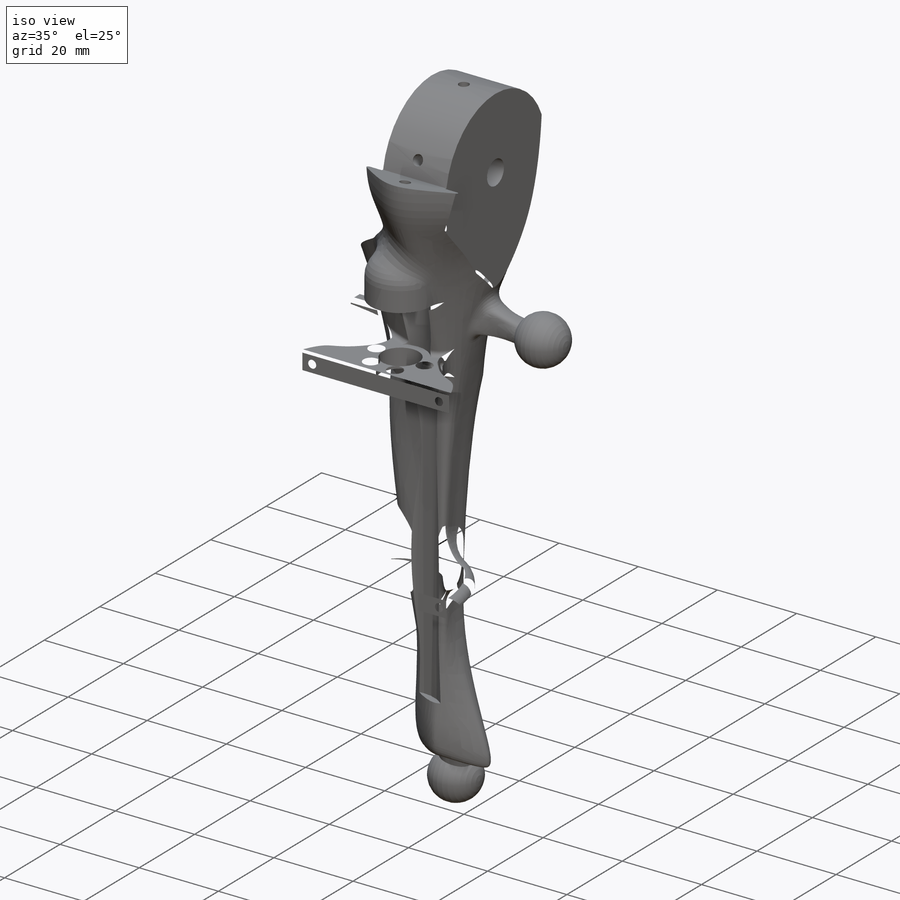
[diagram: iso view]
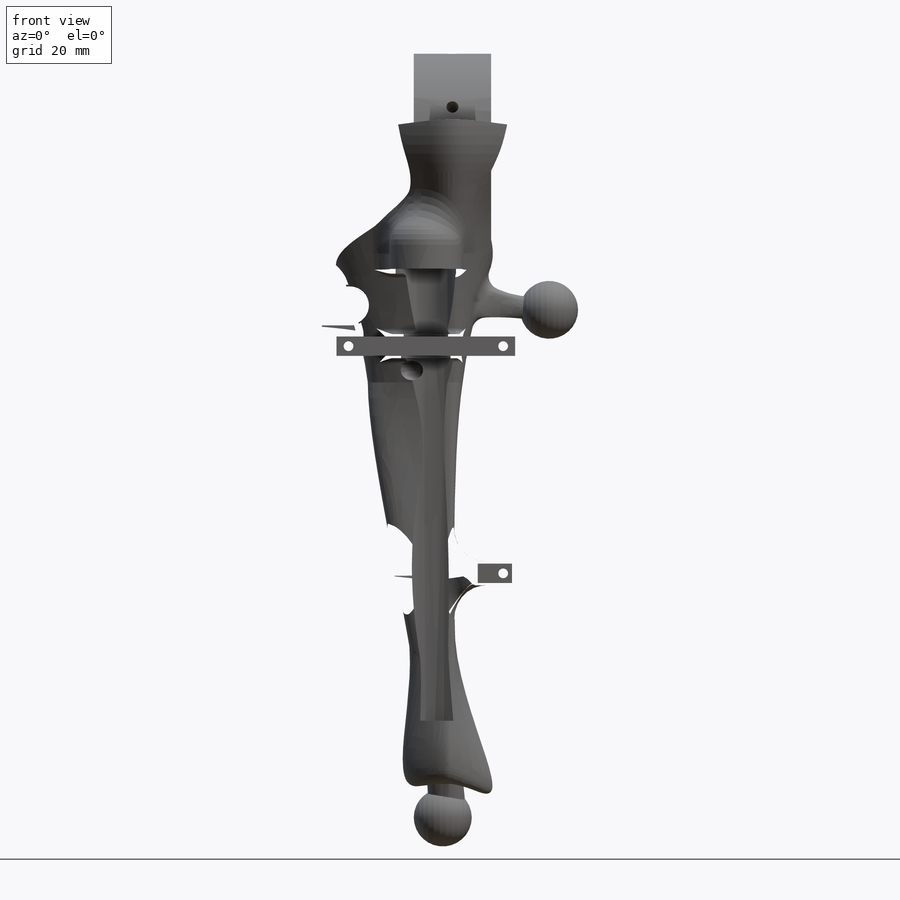
[diagram: front view]
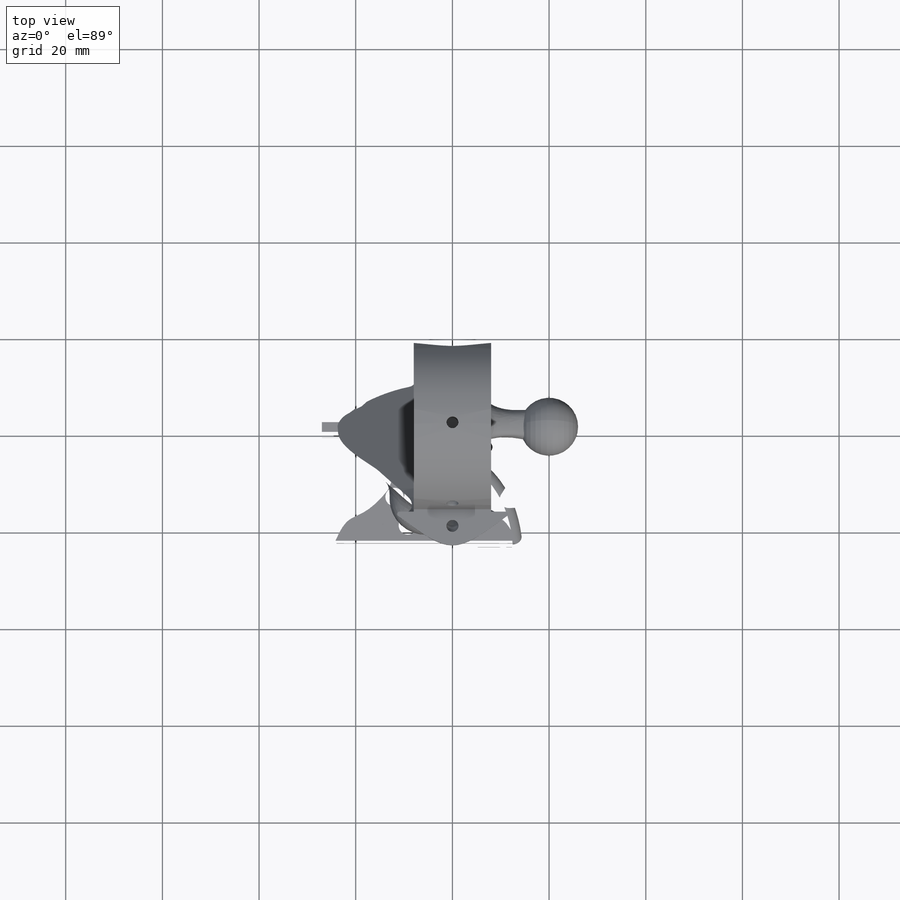
[diagram: top view]
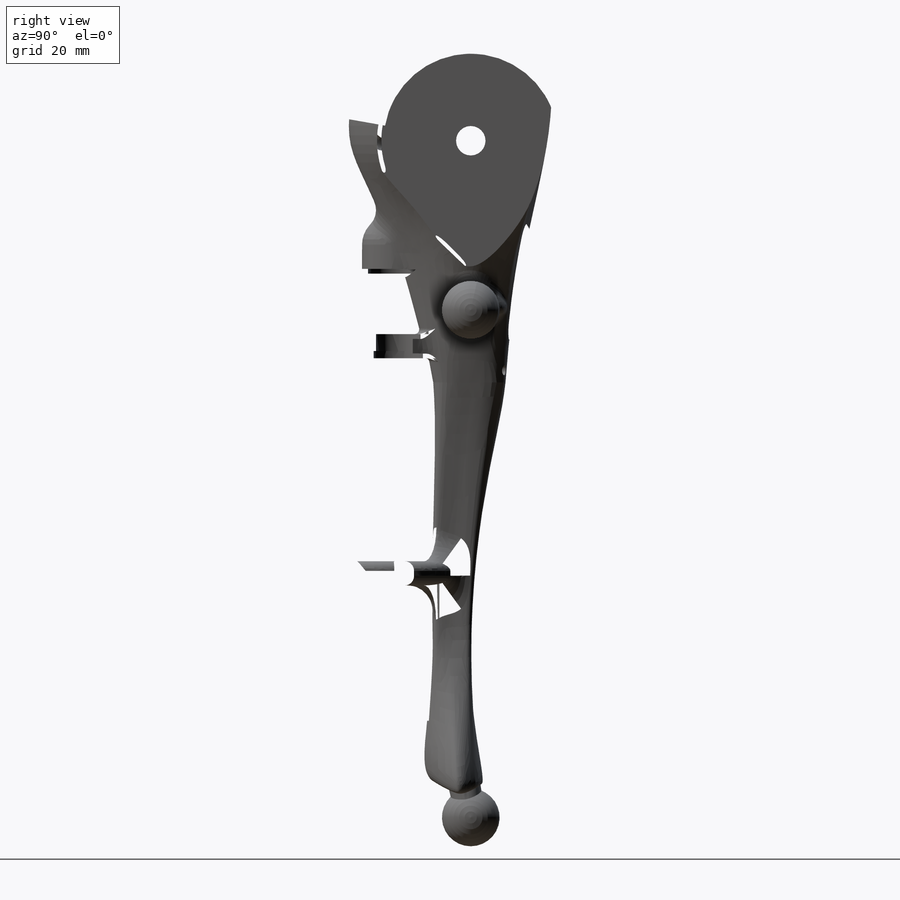
[diagram: right view]
SOLIDWORKS PART (.sldprt)
format: sldprt  version: not decoded by parser v0  size: 10,753,024 bytes
history: native  units: mm
features: sketch x46, fillet x24, plane x21, cut_extrude x19, extrude x7, revolve x3, boolean_combine x3, delete_body x2, cut_revolve x2, material x1, sweep x1, chamfer x1, pattern_circular x1, mirror x1, move_body x1 + 1 further entry (+14 scaffold rows collapsed; 4 parser-record rows omitted)
feature tree (152):
  scaffold x14  (default folders/planes/origin — collapsed)
  material  "Material <nicht festgelegt>"
  plane  "Vorne"
  plane  "Oben"
  plane  "Rechts"
  "p-vorlage-skelett-design-v02"
  parser-record x4  (decoder bookkeeping rows leaked as tree rows — omitted from the tree; the rows remain in map.json)
  sketch  "Skizze1"  dims[c1.D1=35.0mm c1.D2=17.5mm c1.D3=25.0mm c1.D4=12.5mm c1.D5=~132.892993mm c2.D4=360.0mm c2.D1=~19.499739mm]
  plane  "Ebene1"
  plane  "Ebene3"  Offset=10mm
  plane  "Ebene4"  Offset=18mm
  delete_body  "Körper-Löschen1"
  delete_body  "Oberflächenausfüllung2"
  sketch  "Skizze14"  dims[D1=6.1mm D2=50.0mm]
  cut_extrude  "Schnitt-Linear austragen1"  Depth=90mm
  sketch  "Skizze15"  dims[c1.D1=36.0mm c1.D2=~41.551014mm c2.D2=10.0deg c2.D3=~27.944848mm c3.D3=18.0deg c3.D4=~26.147644mm c4.D4=10.0deg]
  cut_extrude  "Schnitt-Linear austragen2"  [1 undecoded]
  sketch  "Skizze16"  dims[c1.D1=37.0mm c1.D2=56.4001mm c2.D2=45.0deg c3.D2=~13.081475mm c4.D2=45.0deg c4.D3=~26.162951mm]
  plane  "Ebene5"  Offset=8mm
  sketch  "Skizze31"  dims[D1=37.0mm]
  sketch  "Skizze17"  dims[D2=18.5mm D1=0.0mm]
  cut_extrude  "Schnitt-Linear austragen7"  [1 undecoded]
  plane  "Ebene6"  Offset=8mm
  sketch  "Skizze18"  dims[D1=0.0mm]
  cut_extrude  "Schnitt-Linear austragen8"  [1 undecoded]
  plane  "Ebene7"
  plane  "Ebene8"  Offset=140mm
  sketch  "Skizze22"  dims[c1.D2=6.0mm c1.D1=~132.90932mm c2.D2=~25.734893mm c2.D1=2.0mm c2.D3=15.0mm c2.D4=20.0mm]
  revolve  "Rotation1"  Angle=360deg
  sketch  "Skizze24"  dims[D1=6.0mm]
  revolve  "Rotation2"  Angle=360deg
  plane  "Ebene9"
  sketch  "Skizze25"  dims[D1=3.0mm D2=8.0mm D3=3.0mm D4=3.0mm D5=4.0mm D6=4.5mm]
  plane  "Ebene10"
  plane  "Ebene11"
  sketch  "Skizze27"  dims[D1=4.0mm D2=4.0mm D3=3.0mm D4=3.0mm]
  sketch  "Skizze28"  dims[D1=9.0mm D2=7.5mm D3=8.0mm D4=3.0mm]
  sketch  "Skizze29"
  sketch  "Skizze30"
  boolean_combine  "Kombinieren1"
  fillet  "Verrundung1"  Radius=3mm
  sketch  "3D-Skizze1"
  boolean_combine  "Ausformung3"
  sketch  "Skizze32"  dims[D1=47.5mm D2=8.0mm D3=4.0mm]
  plane  "Ebene12"
  sketch  "Skizze33"  dims[D1=2.0mm D2=10.0mm D3=4.0mm D4=10.0mm]
  cut_revolve  "Schnitt-Rotation1"  Angle=360deg
  plane  "Ebene13"  Offset=7mm
  sketch  "Skizze34"
  plane  "Ebene14"  Offset=40mm
  sketch  "Skizze35"
  sketch  "3D-Skizze2"
  boolean_combine  "Ausformung4"
  sketch  "Skizze36"  dims[D1=2.46mm]
  cut_extrude  "Schnitt-Linear austragen9"  [1 undecoded]
  sketch  "Skizze37"  dims[c1.D1=4.0mm c1.D2=21.5mm c2.D1=6.0mm c2.D3=2.0mm]
  sketch  "Skizze38"  dims[D1=2.5mm]
  sweep  "Schnitt-Austragung1"
  plane  "Ebene15"  Offset=5mm
  sketch  "Skizze39"  dims[D1=17.0mm D2=15.0mm D3=5.5mm]
  cut_extrude  "Schnitt-Linear austragen10"  Depth=75mm
  sketch  "Skizze40"  dims[D1=9.2mm D4=18.0mm D2=5.5mm D3=15.0mm]
  extrude  "Aufsatz-Linear austragen1"  Depth=5mm
  fillet  "Verrundung2"  Radius=5mm
  plane  "Ebene16"
  sketch  "Skizze43"  dims[D1=17.5mm D2=12.0mm D3=15.0mm]
  revolve  "Rotation3"  Angle=360deg
  sketch  "Skizze44"  dims[D1=1.5mm D2=10.2mm D3=12.5mm D4=5.0mm D5=9.0mm D6=19.0mm D7=8.1mm D8=6.0mm]
  cut_revolve  "Schnitt-Rotation2"  Angle=360deg
  sketch  "Skizze45"  dims[D1=0.0mm]
  cut_extrude  "Schnitt-Linear austragen12"  [1 undecoded]
  fillet  "Verrundung5"  Radius=6mm
  fillet  "Verrundung6"  Radius=6mm
  fillet  "Verrundung7"  Radius=1mm
  fillet  "Verrundung8"  Radius=1mm
  plane  "Ebene17"  Offset=13mm
  sketch  "Skizze50"  dims[c1.D1=3.0mm c1.D4=3.0mm c1.D2=12.0mm c1.D3=3.0mm c2.D4=6.0mm c2.D5=10.0mm c2.D6=6.0mm c2.D7=12.5mm c2.D8=23.0mm c2.D9=5.0mm]
  extrude  "Aufsatz-Linear austragen3"  Depth=4.5mm
  sketch  "Skizze51"
  cut_extrude  "Schnitt-Linear austragen14"  [1 undecoded]
  sketch  "Skizze52"  dims[D1=8.1mm]
  cut_extrude  "Schnitt-Linear austragen15"  Depth=1.15mm
  sketch  "Skizze53"  dims[D1=0.0mm]
  cut_extrude  "Schnitt-Linear austragen16"  Depth=1.15mm
  fillet  "Verrundung12"  Radius=1mm
  fillet  "Verrundung14"  Radius=2mm
  fillet  "Verrundung15"  Radius=2mm
  fillet  "Verrundung16"  Radius=1mm
  sketch  "Skizze54"  dims[D1=21.0mm D2=2.0mm D3=7.0mm D4=6.0mm D5=11.0mm D6=11.0mm D7=9.0mm D8=16.0mm]
  extrude  "Aufsatz-Linear austragen4"  Depth=4.5mm
  cut_extrude  "Schnitt-Linear austragen17"  [1 undecoded]
  sketch  "Skizze18<3>"
  sketch  "Skizze55"
  cut_extrude  "Schnitt-Linear austragen18"  [1 undecoded]
  sketch  "Skizze56"  dims[D1=8.4mm]
  cut_extrude  "Schnitt-Linear austragen19"  Depth=1.25mm
  sketch  "Skizze57"  dims[D1=0.0mm]
  cut_extrude  "Schnitt-Linear austragen20"  Depth=1.25mm
  fillet  "Verrundung17"  Radius=1mm
  fillet  "Verrundung19"  Radius=2mm
  fillet  "Verrundung20"  Radius=0.5mm
  sketch  "Skizze58"  dims[c1.D3=3.0mm c1.D7=11.0mm c1.D1=12.0mm c1.D2=29.0mm c1.D4=~77.636075mm c2.D4=30.0deg c2.D5=8.4mm c2.D6=16.0mm c2.D8=10.0mm c2.D9=14.0mm c2.D10=15.0mm c2.D11=6.0mm]
  extrude  "Aufsatz-Linear austragen5"  Depth=6mm
  sketch  "Skizze59"
  cut_extrude  "Schnitt-Linear austragen21"  Depth=5mm
  plane  "Ebene18"  Offset=2.5mm
  sketch  "Skizze60"  dims[D2=6.0mm D3=10.0mm D4=7.0mm D1=0.7mm]
  extrude  "Aufsatz-Linear austragen6"  Depth=2mm
  sketch  "Skizze61"  dims[D1=4.0mm]
  cut_extrude  "Schnitt-Linear austragen22"  [1 undecoded]
  fillet  "Verrundung23"  Radius=1mm
  fillet  "Verrundung24"  Radius=1.5mm
  fillet  "Verrundung21"  Radius=0.5mm
  fillet  "Verrundung25"  Radius=1mm
  sketch  "Skizze62"  dims[c1.D1=13.0mm c1.D2=2.2mm c1.D3=6.5mm c2.D3=5.0deg]
  cut_extrude  "Schnitt-Linear austragen23"  [1 undecoded]
  chamfer  "Fase1"  Distance=0.8mm Angle=45deg
  pattern_circular  "Kreismuster2"  Count=6 Angle=360deg
  sketch  "Skizze63"  dims[D1=17.0mm D2=9.0mm D3=20.0mm D4=7.0mm]
  extrude  "Aufsatz-Linear austragen7"  [1 undecoded]
  plane  "Ebene19"  Offset=47mm
  sketch  "Skizze64"  dims[D1=17.5mm D4=~19.722356mm D2=20.0mm D3=5.0mm]
  extrude  "Aufsatz-Linear austragen8"  Depth=5mm
  sketch  "Skizze65"  dims[D3=2.01mm D1=16.0mm D2=2.5mm D4=32.0mm D5=47.0mm]
  cut_extrude  "Schnitt-Linear austragen24"  Depth=4mm
  fillet  "Verrundung26"  Radius=0.5mm
  fillet  "Verrundung28"  Radius=2mm
  fillet  "Verrundung29"  Radius=1mm
  fillet  "Verrundung30"  Radius=2mm
  fillet  "Verrundung31"  Radius=7mm
  mirror  "Spiegeln1"
  sketch  "Skizze66"  dims[c1.D1=15.5mm c1.D2=~4.014641mm c2.D2=65.0deg c2.D3=4.0mm]
  cut_extrude  "Schnitt-Linear austragen25"  [1 undecoded]
  fillet  "Verrundung32"  Radius=1.5mm
  fillet  "Verrundung33"  Radius=0.5mm
  move_body  "Körper-Verschieben/Kopieren1"
decode coverage: 81 of 111 modeling features carry decoded parameters; 1 rows unclassified (native names shown)
note: ~ marks probable driven/reference dimensions
note: 12 parameter values undecoded
summary: no parameter record found for 12 features
note: suppression state not decoded; provenance and decode notes live in map.json
